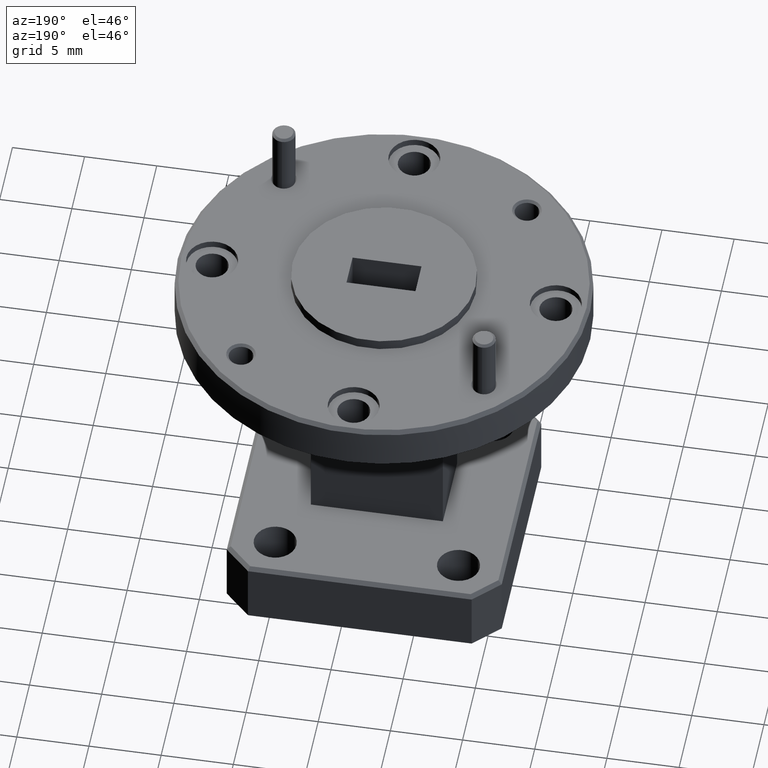
[diagram: clean part render]
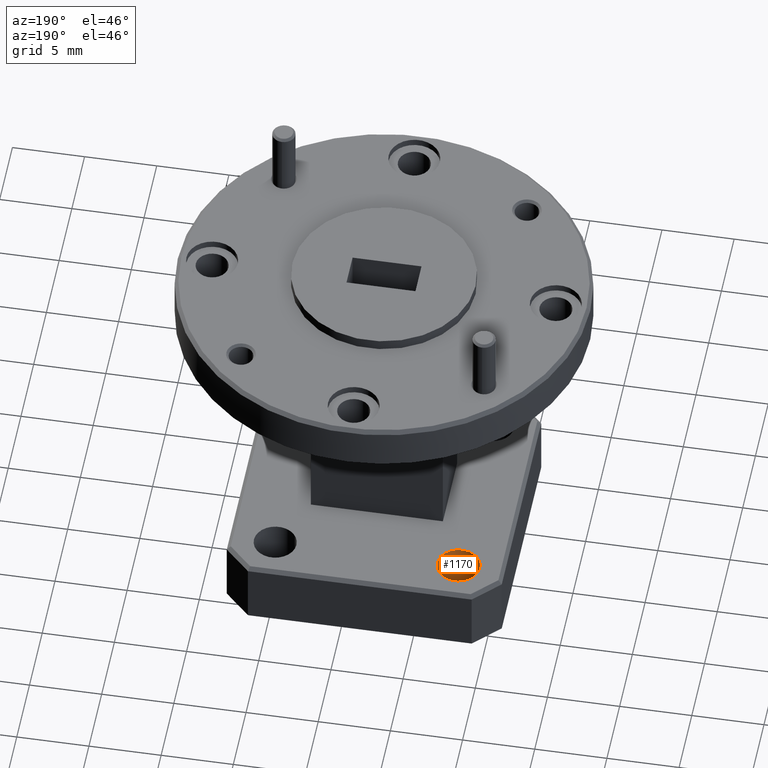
[diagram: same view with one face highlighted and labeled with its STEP entity id]
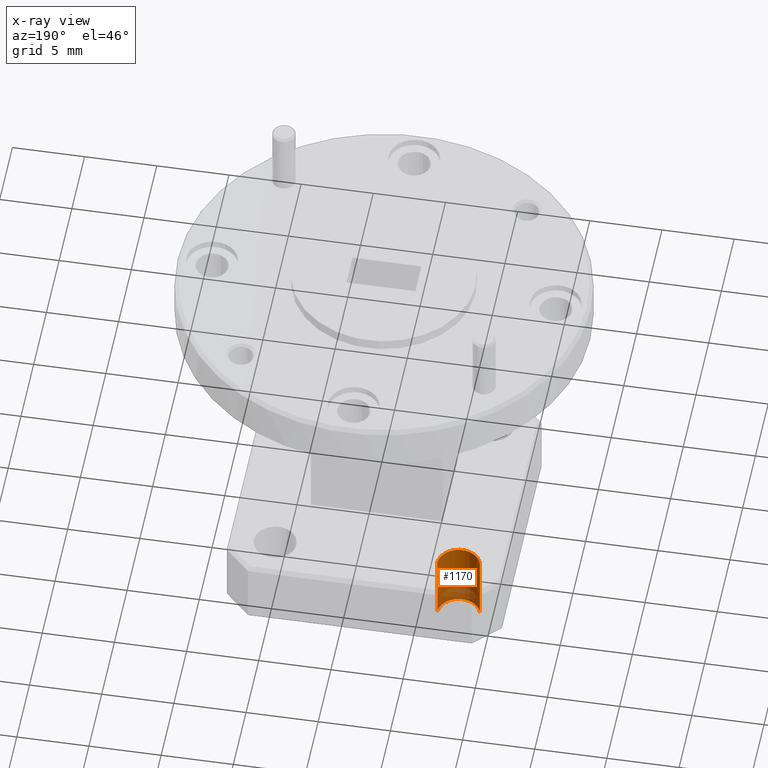
[diagram: x-ray of the same camera — body ghosted, the highlighted face saturated]
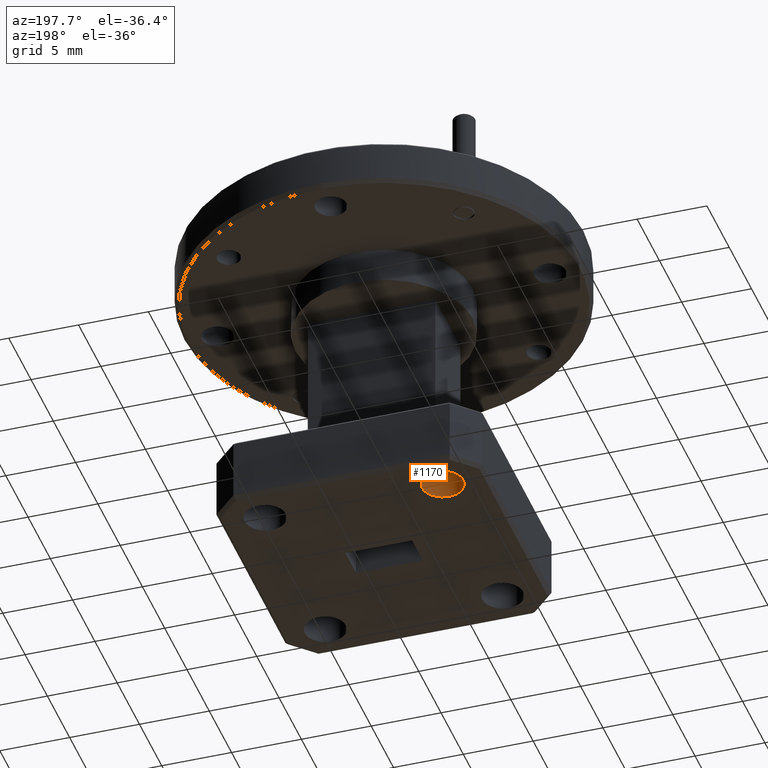
[diagram: same view with one face highlighted and labeled with its STEP entity id]
A machine part, auxiliary view. The second image highlights one B-rep face of the part: STEP entity #1170.
The next image is the same camera in x-ray: the body ghosted, the highlighted face saturated — about 19% of this face is hidden behind the body in this view.
A second angle (auxiliary view) of the same face is appended — the face is thin or edge-on in the first view.
In plain terms, the highlighted cylindrical surface (edge-blend (fillet) strip) has radius 1.4732 mm, axis along (-0, -0, -1).
Its self-contained STEP definition (entity closure, byte-faithful):
#5 = DIRECTION ( 'NONE',  ( -0.0000000000000000000, -0.0000000000000000000, -1.000000000000000000 ) ) ;
#101 = EDGE_CURVE ( 'NONE', #211, #1391, #1047, .T. ) ;
#196 = AXIS2_PLACEMENT_3D ( 'NONE', #1289, #831, #2817 ) ;
#203 = CARTESIAN_POINT ( 'NONE',  ( -3.456395841607355900, 0.9467944780980216400, 0.9187702790670693200 ) ) ;
#211 = VERTEX_POINT ( 'NONE', #1410 ) ;
#223 = LINE ( 'NONE', #1258, #1077 ) ;
#368 = ORIENTED_EDGE ( 'NONE', *, *, #1689, .F. ) ;
#473 = EDGE_CURVE ( 'NONE', #2858, #1391, #2187, .T. ) ;
#539 = CIRCLE ( 'NONE', #2539, 0.05799999999999976700 ) ;
#676 = ORIENTED_EDGE ( 'NONE', *, *, #1338, .F. ) ;
#831 = DIRECTION ( 'NONE',  ( 0.0000000000000000000, 0.0000000000000000000, 1.000000000000000000 ) ) ;
#888 = CARTESIAN_POINT ( 'NONE',  ( -3.514395841607355700, 0.9467944780980216400, 0.7287702790670693700 ) ) ;
#1038 = ORIENTED_EDGE ( 'NONE', *, *, #101, .T. ) ;
#1047 = LINE ( 'NONE', #3117, #2944 ) ;
#1077 = VECTOR ( 'NONE', #5, 39.37007874015748100 ) ;
#1170 = ADVANCED_FACE ( 'NONE', ( #1744 ), #2071, .F. ) ;
#1258 = CARTESIAN_POINT ( 'NONE',  ( -3.514395841607355700, 0.9467944780980216400, 0.7287702790670693700 ) ) ;
#1283 = AXIS2_PLACEMENT_3D ( 'NONE', #1568, #2844, #1844 ) ;
#1289 = CARTESIAN_POINT ( 'NONE',  ( -3.456395841607355900, 0.9467944780980216400, 0.7287702790670693700 ) ) ;
#1338 = EDGE_CURVE ( 'NONE', #211, #2198, #539, .T. ) ;
#1391 = VERTEX_POINT ( 'NONE', #2193 ) ;
#1410 = CARTESIAN_POINT ( 'NONE',  ( -3.398395841607356100, 0.9467944780980216400, 0.9187702790670693200 ) ) ;
#1568 = CARTESIAN_POINT ( 'NONE',  ( -3.456395841607355900, 0.9467944780980216400, 0.7287702790670693700 ) ) ;
#1621 = DIRECTION ( 'NONE',  ( -0.0000000000000000000, -0.0000000000000000000, -1.000000000000000000 ) ) ;
#1689 = EDGE_CURVE ( 'NONE', #2198, #2858, #223, .T. ) ;
#1744 = FACE_OUTER_BOUND ( 'NONE', #2289, .T. ) ;
#1844 = DIRECTION ( 'NONE',  ( -1.000000000000000000, 0.0000000000000000000, 0.0000000000000000000 ) ) ;
#1937 = DIRECTION ( 'NONE',  ( -0.0000000000000000000, -0.0000000000000000000, -1.000000000000000000 ) ) ;
#2071 = CYLINDRICAL_SURFACE ( 'NONE', #1283, 0.05799999999999976700 ) ;
#2187 = CIRCLE ( 'NONE', #196, 0.05799999999999976700 ) ;
#2193 = CARTESIAN_POINT ( 'NONE',  ( -3.398395841607356100, 0.9467944780980216400, 0.7287702790670693700 ) ) ;
#2198 = VERTEX_POINT ( 'NONE', #2332 ) ;
#2289 = EDGE_LOOP ( 'NONE', ( #676, #1038, #2494, #368 ) ) ;
#2332 = CARTESIAN_POINT ( 'NONE',  ( -3.514395841607355700, 0.9467944780980216400, 0.9187702790670693200 ) ) ;
#2494 = ORIENTED_EDGE ( 'NONE', *, *, #473, .F. ) ;
#2539 = AXIS2_PLACEMENT_3D ( 'NONE', #203, #1937, #2923 ) ;
#2817 = DIRECTION ( 'NONE',  ( -1.000000000000000000, 0.0000000000000000000, 0.0000000000000000000 ) ) ;
#2844 = DIRECTION ( 'NONE',  ( -0.0000000000000000000, -0.0000000000000000000, -1.000000000000000000 ) ) ;
#2858 = VERTEX_POINT ( 'NONE', #888 ) ;
#2923 = DIRECTION ( 'NONE',  ( -1.000000000000000000, 0.0000000000000000000, 0.0000000000000000000 ) ) ;
#2944 = VECTOR ( 'NONE', #1621, 39.37007874015748100 ) ;
#3117 = CARTESIAN_POINT ( 'NONE',  ( -3.398395841607356100, 0.9467944780980216400, 0.7287702790670693700 ) ) ;